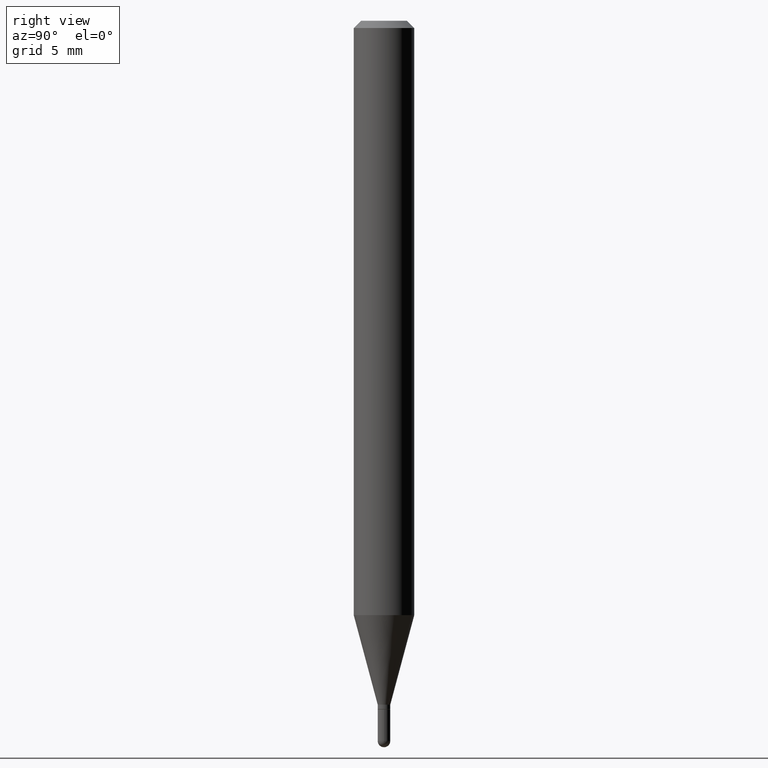
[diagram: clean part render]
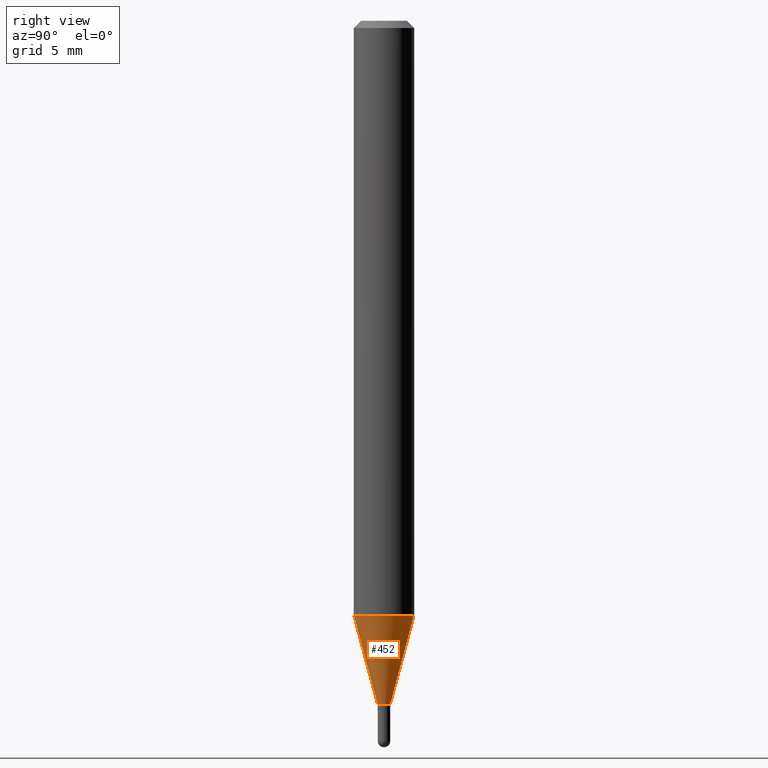
[diagram: same view with one face highlighted and labeled with its STEP entity id]
A machine part, right view. The second image highlights one B-rep face of the part: STEP entity #452.
In plain terms, the highlighted conical surface has half-angle 15 deg.
Its self-contained STEP definition (entity closure, byte-faithful):
#4 = EDGE_LOOP ( 'NONE', ( #126, #473, #167, #361 ) ) ;
#6 = EDGE_CURVE ( 'NONE', #319, #261, #415, .T. ) ;
#12 = CARTESIAN_POINT ( 'NONE',  ( 3.001241874590089611E-29, -4.284957094647328536E-15, -1.227263485025340994 ) ) ;
#28 = DIRECTION ( 'NONE',  ( -1.807323732225330139E-15, -0.2588190451025181860, 0.9659258262890689783 ) ) ;
#31 = CARTESIAN_POINT ( 'NONE',  ( 3.453010358923621239E-29, -4.929959614594984823E-15, -1.412000000000000144 ) ) ;
#85 = VERTEX_POINT ( 'NONE', #98 ) ;
#98 = CARTESIAN_POINT ( 'NONE',  ( 2.682298827494699087E-16, 0.01299999999999499126, -1.412000000000000144 ) ) ;
#112 = FACE_OUTER_BOUND ( 'NONE', #4, .T. ) ;
#126 = ORIENTED_EDGE ( 'NONE', *, *, #379, .T. ) ;
#156 = DIRECTION ( 'NONE',  ( -2.445474758444490748E-29, 3.491472814868968822E-15, 1.000000000000000000 ) ) ;
#167 = ORIENTED_EDGE ( 'NONE', *, *, #6, .F. ) ;
#176 = DIRECTION ( 'NONE',  ( -6.982962677686265922E-15, -1.000000000000000000, 4.370956789862821150E-15 ) ) ;
#187 = CARTESIAN_POINT ( 'NONE',  ( -9.077851480988638462E-17, -0.01300000000000485142, -1.412000000000000144 ) ) ;
#190 = CARTESIAN_POINT ( 'NONE',  ( -9.077851480988638462E-17, -0.01300000000000485142, -1.412000000000000144 ) ) ;
#192 = AXIS2_PLACEMENT_3D ( 'NONE', #12, #454, #176 ) ;
#193 = VECTOR ( 'NONE', #350, 39.37007874015748143 ) ;
#202 = AXIS2_PLACEMENT_3D ( 'NONE', #219, #156, #274 ) ;
#219 = CARTESIAN_POINT ( 'NONE',  ( 3.453010358923621239E-29, -4.929959614594984823E-15, -1.412000000000000144 ) ) ;
#227 = DIRECTION ( 'NONE',  ( -2.445474758444490748E-29, 3.491472814868968822E-15, 1.000000000000000000 ) ) ;
#259 = AXIS2_PLACEMENT_3D ( 'NONE', #31, #227, #315 ) ;
#261 = VERTEX_POINT ( 'NONE', #374 ) ;
#274 = DIRECTION ( 'NONE',  ( -6.982962677686266711E-15, -1.000000000000000000, 0.000000000000000000 ) ) ;
#300 = CIRCLE ( 'NONE', #259, 0.01299999999999992134 ) ;
#315 = DIRECTION ( 'NONE',  ( -6.982962677686266711E-15, -1.000000000000000000, 0.000000000000000000 ) ) ;
#319 = VERTEX_POINT ( 'NONE', #333 ) ;
#326 = EDGE_CURVE ( 'NONE', #85, #261, #347, .T. ) ;
#333 = CARTESIAN_POINT ( 'NONE',  ( -4.364351673553616434E-16, -0.06250000000000428824, -1.227263485025340772 ) ) ;
#347 = LINE ( 'NONE', #354, #193 ) ;
#350 = DIRECTION ( 'NONE',  ( 1.839019923739600315E-15, 0.2588190451025249583, 0.9659258262890670910 ) ) ;
#354 = CARTESIAN_POINT ( 'NONE',  ( 9.237055564884697792E-17, 0.01299999999999499126, -1.412000000000000144 ) ) ;
#361 = ORIENTED_EDGE ( 'NONE', *, *, #501, .F. ) ;
#374 = CARTESIAN_POINT ( 'NONE',  ( 4.440892098500924943E-16, 0.06249999999999571176, -1.227263485025341216 ) ) ;
#379 = EDGE_CURVE ( 'NONE', #404, #85, #300, .T. ) ;
#404 = VERTEX_POINT ( 'NONE', #187 ) ;
#415 = CIRCLE ( 'NONE', #192, 0.06250000000000000000 ) ;
#452 = ADVANCED_FACE ( 'NONE', ( #112 ), #460, .T. ) ;
#454 = DIRECTION ( 'NONE',  ( -2.445474758444490748E-29, 3.491472814868968822E-15, 1.000000000000000000 ) ) ;
#455 = VECTOR ( 'NONE', #28, 39.37007874015748143 ) ;
#460 = CONICAL_SURFACE ( 'NONE', #202, 0.01299999999999992134, 0.2617993877991502960 ) ;
#462 = LINE ( 'NONE', #190, #455 ) ;
#473 = ORIENTED_EDGE ( 'NONE', *, *, #326, .T. ) ;
#501 = EDGE_CURVE ( 'NONE', #404, #319, #462, .T. ) ;